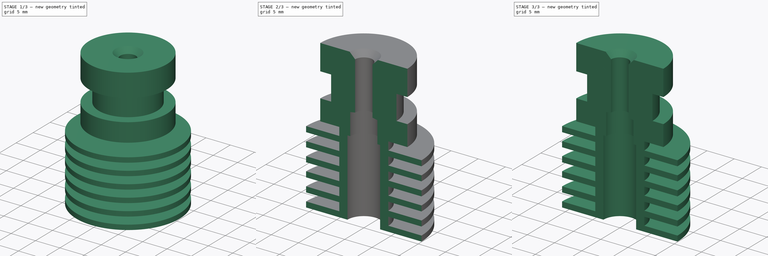
[diagram: build sequence overview — one tinted view per stage of 3, left to right]
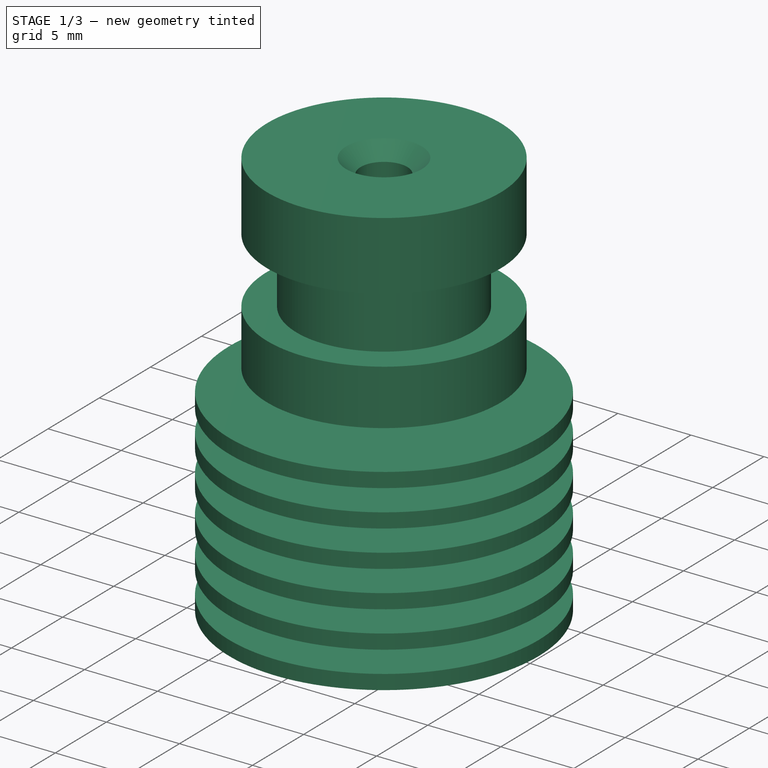
[diagram: stage 1 of 3 — iso view after this stage's code; geometry added in this stage tinted green]
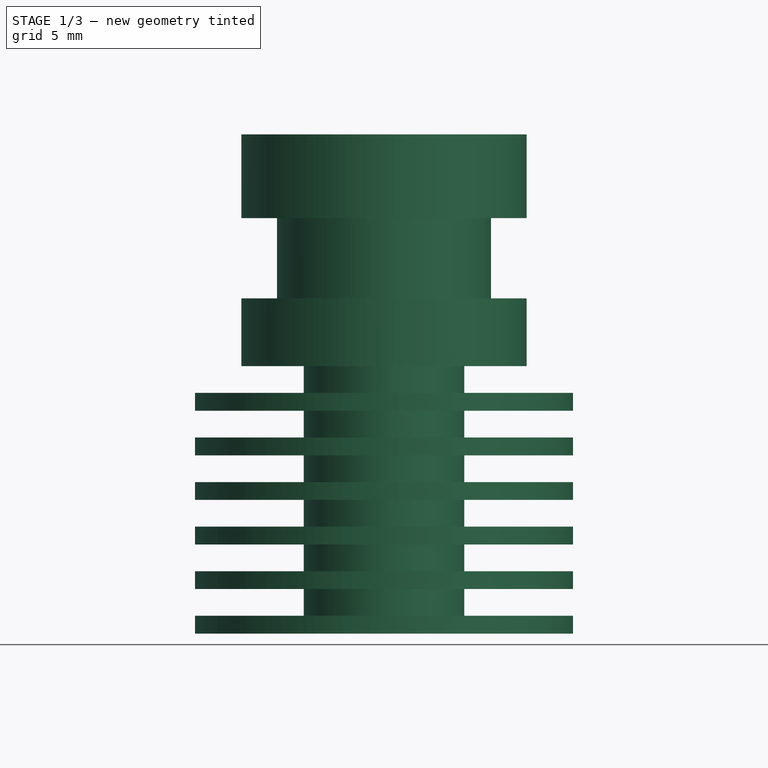
[diagram: stage 1 of 3 — front view after this stage's code; geometry added in this stage tinted green]
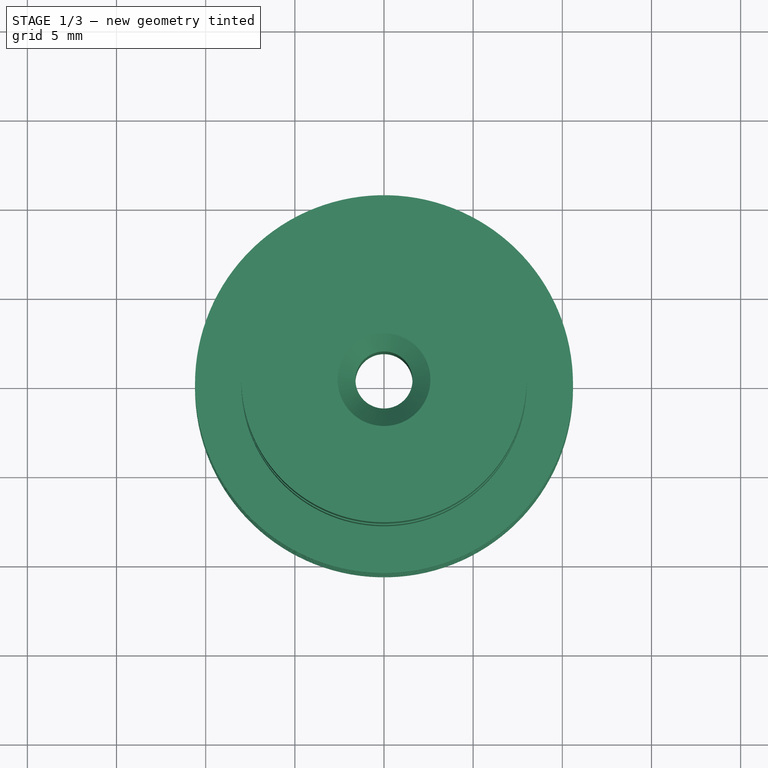
[diagram: stage 1 of 3 — top view after this stage's code; geometry added in this stage tinted green]
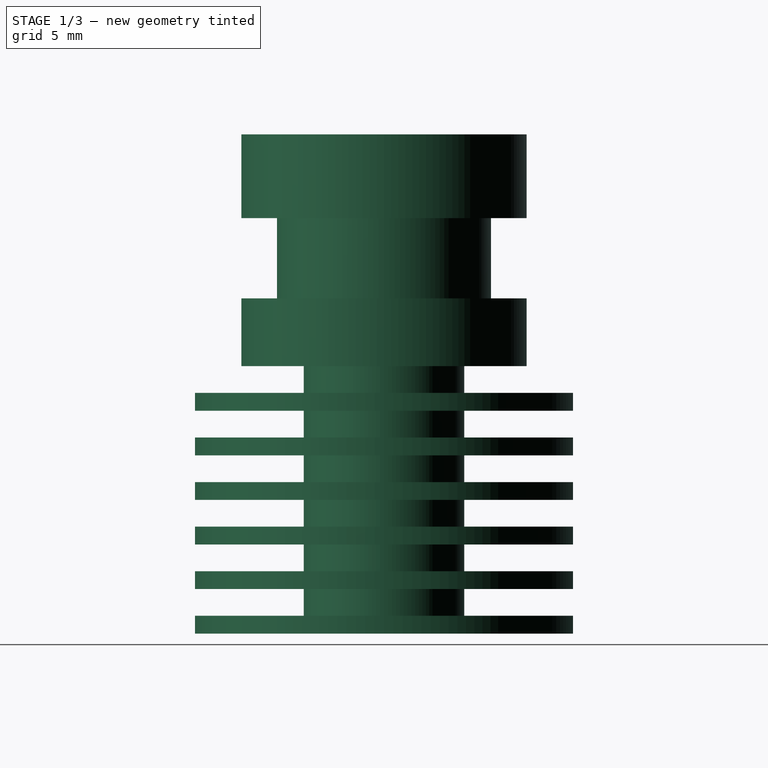
[diagram: stage 1 of 3 — right view after this stage's code; geometry added in this stage tinted green]
FCSTD DOCUMENT  (FreeCAD 0.17R13662 (Git))
Label: MOARstruder-heatsink_PP-MP0151_revA
License: All rights reserved
LicenseURL: http://en.wikipedia.org/wiki/All_rights_reserved
objects: Drawing::FeatureView×41, Drawing::FeatureViewPart×4, Sketcher::SketchObject×3, PartDesign::Pocket×2, PartDesign::Revolution×1, PartDesign::Chamfer×1, PartDesign::LinearPattern×1, PartDesign::Body×1, Drawing::FeaturePage×1
note: 12 computed .brp shape members not serialized (recipe doc carries the construction recipe); baked Part::Feature solids carry a one-line shape summary decoded from their .brp

FEATURE [Sketcher::SketchObject] Sketch
  MapMode = 5
  Placement = pos=(0,0,0) rot=(1,0,0;1.5708rad)
  Support = -> [XZ_Plane]
  sketch-geometry (36):
    g0: LineSegment StartX=10.6 StartY=0 StartZ=0 EndX=10.6 EndY=1 EndZ=0
    g1: LineSegment StartX=10.6 StartY=1 StartZ=0 EndX=4.5 EndY=1 EndZ=0
    g2: LineSegment StartX=4.5 StartY=1 StartZ=0 EndX=4.5 EndY=2.5 EndZ=0
    g3: LineSegment StartX=4.5 StartY=2.5 StartZ=0 EndX=10.6 EndY=2.5 EndZ=0
    g4: LineSegment StartX=10.6 StartY=2.5 StartZ=0 EndX=10.6 EndY=3.5 EndZ=0
    g5: LineSegment StartX=10.6 StartY=3.5 StartZ=0 EndX=4.5 EndY=3.5 EndZ=0
    g6: LineSegment StartX=4.5 StartY=3.5 StartZ=0 EndX=4.5 EndY=5 EndZ=0
    g7: LineSegment StartX=4.5 StartY=5 StartZ=0 EndX=10.6 EndY=5 EndZ=0
    g8: LineSegment StartX=10.6 StartY=5 StartZ=0 EndX=10.6 EndY=6 EndZ=0
    g9: LineSegment StartX=10.6 StartY=6 StartZ=0 EndX=4.5 EndY=6 EndZ=0
    g10: LineSegment StartX=4.5 StartY=6 StartZ=0 EndX=4.5 EndY=7.5 EndZ=0
    g11: LineSegment StartX=4.5 StartY=7.5 StartZ=0 EndX=10.6 EndY=7.5 EndZ=0
    g12: LineSegment StartX=10.6 StartY=7.5 StartZ=0 EndX=10.6 EndY=8.5 EndZ=0
    g13: LineSegment StartX=10.6 StartY=8.5 StartZ=0 EndX=4.5 EndY=8.5 EndZ=0
    g14: LineSegment StartX=4.5 StartY=8.5 StartZ=0 EndX=4.5 EndY=10 EndZ=0
    g15: LineSegment StartX=4.5 StartY=10 StartZ=0 EndX=10.6 EndY=10 EndZ=0
    g16: LineSegment StartX=10.6 StartY=10 StartZ=0 EndX=10.6 EndY=11 EndZ=0
    g17: LineSegment StartX=10.6 StartY=11 StartZ=0 EndX=4.5 EndY=11 EndZ=0
    g18: LineSegment StartX=4.5 StartY=11 StartZ=0 EndX=4.5 EndY=12.5 EndZ=0
    g19: LineSegment StartX=4.5 StartY=12.5 StartZ=0 EndX=10.6 EndY=12.5 EndZ=0
    g20: LineSegment StartX=10.6 StartY=12.5 StartZ=0 EndX=10.6 EndY=13.5 EndZ=0
    g21: LineSegment StartX=10.6 StartY=13.5 StartZ=0 EndX=4.5 EndY=13.5 EndZ=0
    g22: LineSegment StartX=4.5 StartY=13.5 StartZ=0 EndX=4.5 EndY=15 EndZ=0
    g23: LineSegment StartX=4.5 StartY=15 StartZ=0 EndX=8 EndY=15 EndZ=0
    g24: LineSegment StartX=8 StartY=15 StartZ=0 EndX=8 EndY=18.8 EndZ=0
    g25: LineSegment StartX=8 StartY=18.8 StartZ=0 EndX=6 EndY=18.8 EndZ=0
    g26: LineSegment StartX=6 StartY=18.8 StartZ=0 EndX=6 EndY=23.3 EndZ=0
    g27: LineSegment StartX=6 StartY=23.3 StartZ=0 EndX=8 EndY=23.3 EndZ=0
    g28: LineSegment StartX=8 StartY=23.3 StartZ=0 EndX=8 EndY=28 EndZ=0
    g29: LineSegment StartX=8 StartY=28 StartZ=0 EndX=1.6 EndY=28 EndZ=0
    g30: LineSegment StartX=1.6 StartY=28 StartZ=0 EndX=1.6 EndY=18.1587 EndZ=0
    g31: LineSegment StartX=1.6 StartY=18.1587 StartZ=0 EndX=2.5 EndY=18 EndZ=0
    g32: LineSegment StartX=2.5 StartY=18 StartZ=0 EndX=2.5 EndY=14 EndZ=0
    g33: LineSegment StartX=2.5 StartY=14 StartZ=0 EndX=3 EndY=14 EndZ=0
    g34: LineSegment StartX=3 StartY=14 StartZ=0 EndX=3 EndY=0 EndZ=0
    g35: LineSegment StartX=3 StartY=0 StartZ=0 EndX=10.6 EndY=0 EndZ=0
  constraints (108):
    c: PointOnObject(g0,g-1)
    c: Vertical(g0)
    c: Coincident(g0,g1)
    c: Horizontal(g1)
    c: Coincident(g1,g2)
    c: Vertical(g2)
    c: Coincident(g2,g3)
    c: Horizontal(g3)
    c: Coincident(g3,g4)
    c: Vertical(g4)
    c: Coincident(g4,g5)
    c: Horizontal(g5)
    c: Coincident(g5,g6)
    c: Vertical(g6)
    c: Coincident(g6,g7)
    c: Horizontal(g7)
    c: Coincident(g7,g8)
    c: Vertical(g8)
    c: Coincident(g8,g9)
    c: Coincident(g9,g10)
    c: Vertical(g10)
    c: Coincident(g10,g11)
    c: Coincident(g11,g12)
    c: Vertical(g12)
    c: Coincident(g12,g13)
    c: Coincident(g13,g14)
    c: Coincident(g14,g15)
    c: Coincident(g15,g16)
    c: Vertical(g16)
    c: Coincident(g16,g17)
    c: Horizontal(g17)
    c: Coincident(g17,g18)
    c: Vertical(g18)
    c: Coincident(g18,g19)
    c: Horizontal(g19)
    c: Coincident(g19,g20)
    c: Vertical(g20)
    c: Coincident(g20,g21)
    c: Horizontal(g21)
    c: Horizontal(g9)
    c: Horizontal(g11)
    c: Horizontal(g13)
    c: Horizontal(g15)
    c: Vertical(g14)
    c: DistanceX(g0) = 10.6
    c: PointOnObject(g3,g0)
    c: PointOnObject(g7,g4)
    c: PointOnObject(g11,g8)
    c: PointOnObject(g15,g12)
    c: PointOnObject(g16,g20)
    c: Equal(g1,g5)
    c: Equal(g5,g9)
    c: Equal(g9,g13)
    c: Equal(g13,g17)
    c: DistanceX(g-1,g1) = 4.5
    c: Equal(g0,g4)
    c: Equal(g4,g8)
    c: Equal(g8,g12)
    c: Equal(g12,g16)
    c: Equal(g16,g20)
    c: DistanceY(g0,g0) = 1
    c: Equal(g2,g6)
    c: Equal(g6,g10)
    c: Equal(g10,g14)
    c: Equal(g14,g18)
    c: DistanceY(g2,g2) = 1.5
    c: PointOnObject(g21,g18)
    c: Coincident(g21,g22)
    c: Vertical(g22)
    c: Coincident(g22,g23)
    c: Horizontal(g23)
    c: Coincident(g23,g24)
    c: Vertical(g24)
    c: Coincident(g24,g25)
    c: Horizontal(g25)
    c: Coincident(g25,g26)
    c: Vertical(g26)
    c: Coincident(g26,g27)
    c: Horizontal(g27)
    c: Coincident(g27,g28)
    c: Vertical(g28)
    c: Coincident(g28,g29)
    c: Horizontal(g29)
    c: Coincident(g29,g30)
    c: Vertical(g30)
    c: Coincident(g30,g31)
    c: Coincident(g31,g32)
    c: Vertical(g32)
    c: Coincident(g32,g33)
    c: Horizontal(g33)
    c: Coincident(g33,g34)
    c: PointOnObject(g34,g-1)
    c: Vertical(g34)
    c: Coincident(g34,g35)
    c: Coincident(g35,g0)
    c: DistanceX(g34) = 3
    c: DistanceX(g32) = 2.5
    c: DistanceX(g30) = 1.6
    c: DistanceX(g25) = 6
    c: PointOnObject(g27,g24)
    c: DistanceX(g23) = 8
    c: DistanceY(g24,g24) = 3.8
    c: DistanceY(g26,g26) = 4.5
    c: DistanceY(g28,g28) = 4.7
    c: DistanceY(g31) = 18
    c: Angle(g31,g32) = 1.74533
    c: DistanceY(g33) = 14
    c: DistanceY(g22,g22) = 1.5
FEATURE [PartDesign::Revolution] Revolution
  Angle = 360
  Axis = (0,0,1)
  Base = (0,0,0)
  Placement = pos=(0,0,0) rot=(1,0,0;1.5708rad)
  Profile = -> Sketch
  ReferenceAxis = -> Sketch [V_Axis]
  Reversed = true
FEATURE [PartDesign::Chamfer] Chamfer
  Base = -> Revolution [Edge46]
  BaseFeature = -> Revolution
  Placement = pos=(0,0,0) rot=(1,0,0;1.5708rad)
  Size = 1
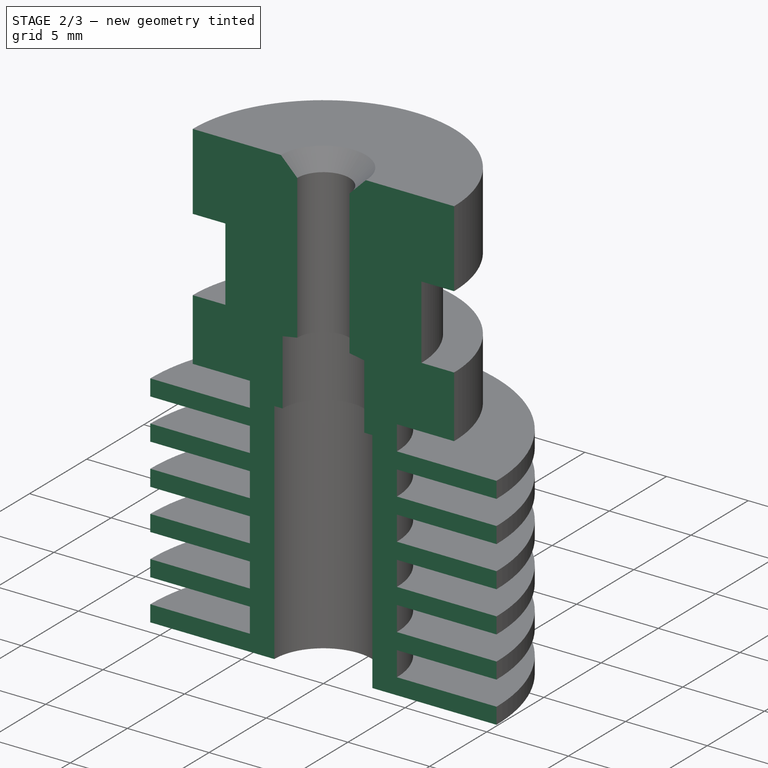
[diagram: stage 2 of 3 — iso view after this stage's code; geometry added in this stage tinted green]
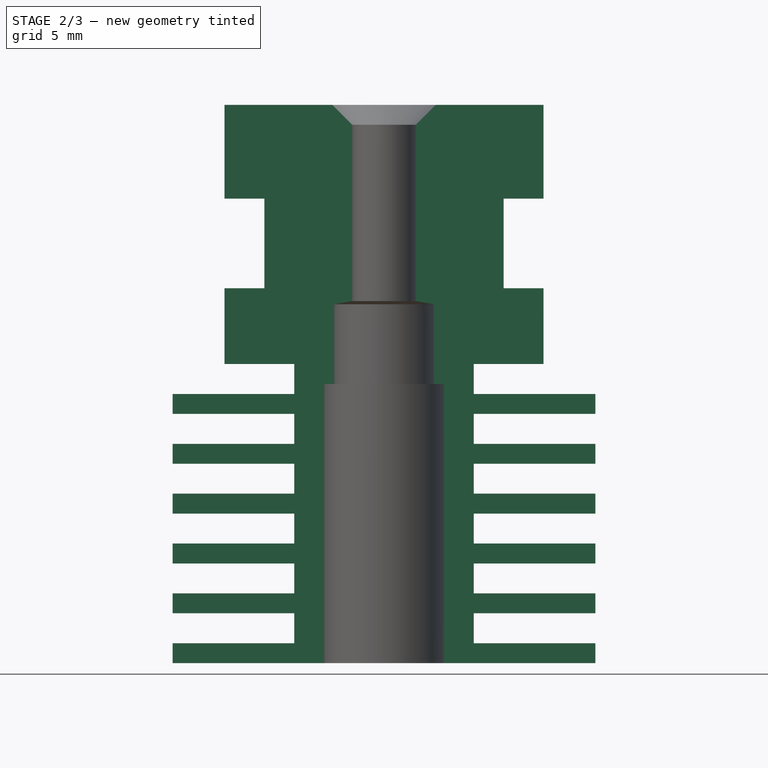
[diagram: stage 2 of 3 — front view after this stage's code; geometry added in this stage tinted green]
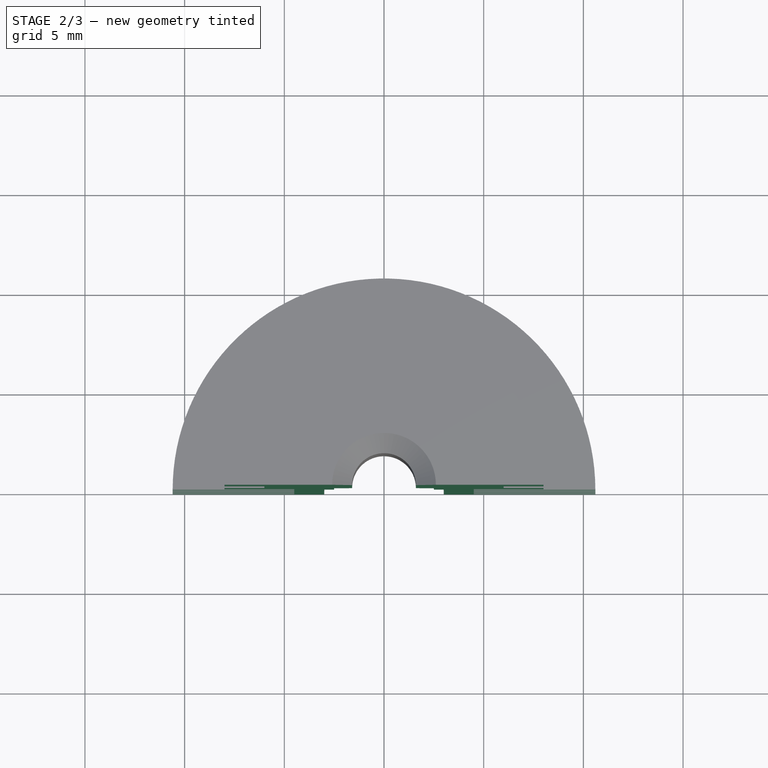
[diagram: stage 2 of 3 — top view after this stage's code; geometry added in this stage tinted green]
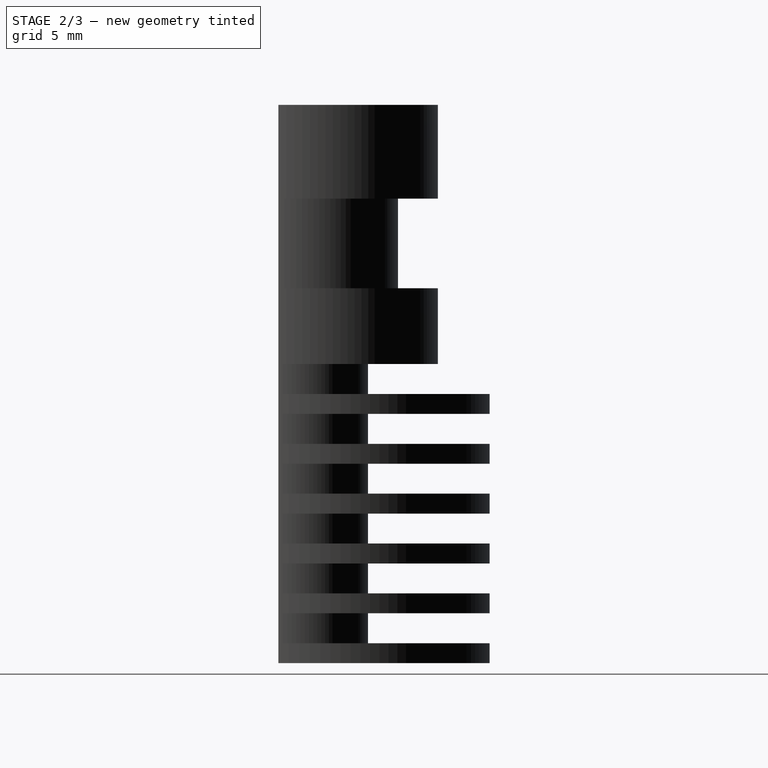
[diagram: stage 2 of 3 — right view after this stage's code; geometry added in this stage tinted green]
FEATURE [Sketcher::SketchObject] Sketch001
  MapMode = 5
  Placement = pos=(0,0,28) rot=(0,0,1;3.14159rad)
  Support = -> [Chamfer]
  sketch-geometry (4):
    g0: LineSegment StartX=-15 StartY=0 StartZ=0 EndX=15 EndY=0 EndZ=0
    g1: LineSegment StartX=15 StartY=0 StartZ=0 EndX=15 EndY=15 EndZ=0
    g2: LineSegment StartX=15 StartY=15 StartZ=0 EndX=-15 EndY=15 EndZ=0
    g3: LineSegment StartX=-15 StartY=15 StartZ=0 EndX=-15 EndY=0 EndZ=0
  constraints (12):
    c: Coincident(g0,g1)
    c: Coincident(g1,g2)
    c: Coincident(g2,g3)
    c: Coincident(g3,g0)
    c: Horizontal(g0)
    c: Horizontal(g2)
    c: Vertical(g1)
    c: Vertical(g3)
    c: PointOnObject(g0,g-1)
    c: Symmetric(g2,g1,g-2)
    c: DistanceY(g1,g1) = 15
    c: DistanceX(g2,g2) = 30
FEATURE [PartDesign::Pocket] Pocket
  BaseFeature = -> Chamfer
  Length = 5
  Length2 = 100
  Placement = pos=(0,0,0) rot=(1,0,0;1.5708rad)
  Profile = -> Sketch001
  Type = 1
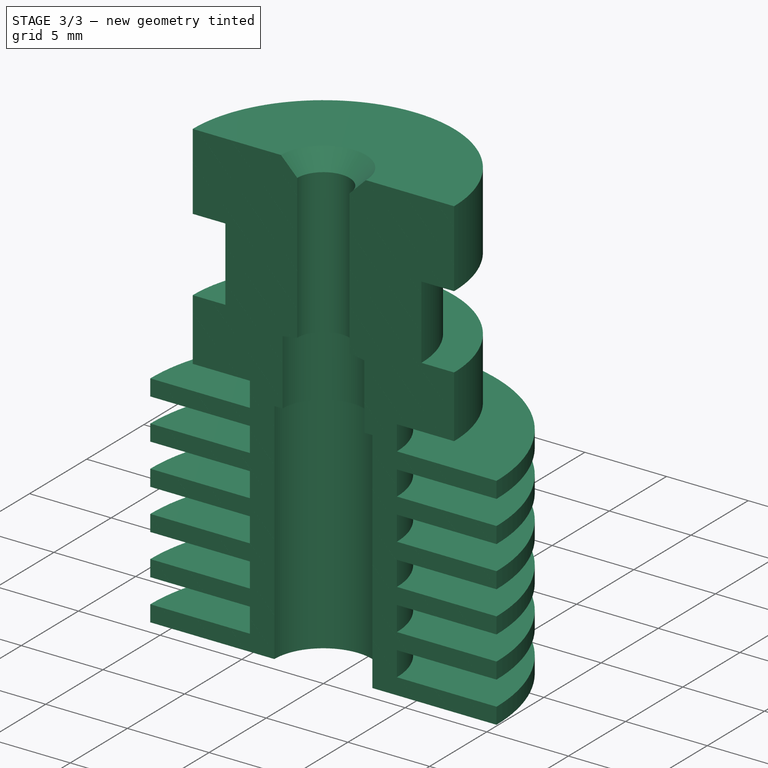
[diagram: stage 3 of 3 — iso view after this stage's code; geometry added in this stage tinted green]
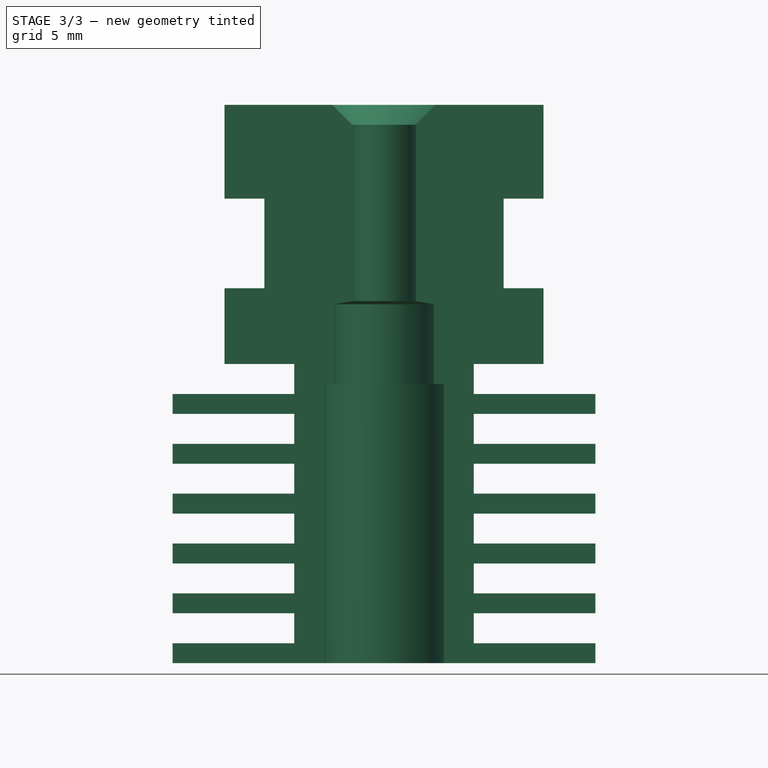
[diagram: stage 3 of 3 — front view after this stage's code; geometry added in this stage tinted green]
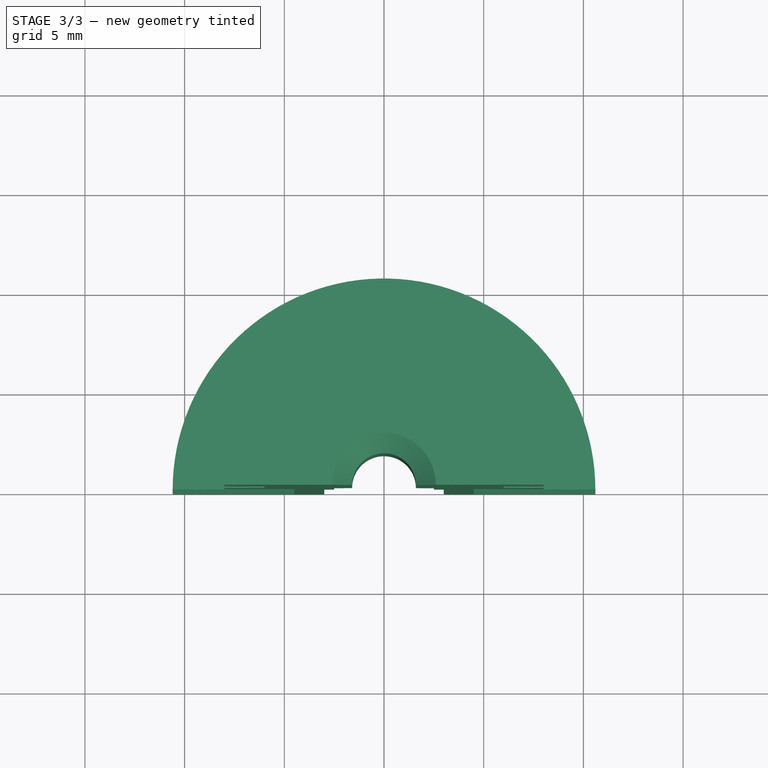
[diagram: stage 3 of 3 — top view after this stage's code; geometry added in this stage tinted green]
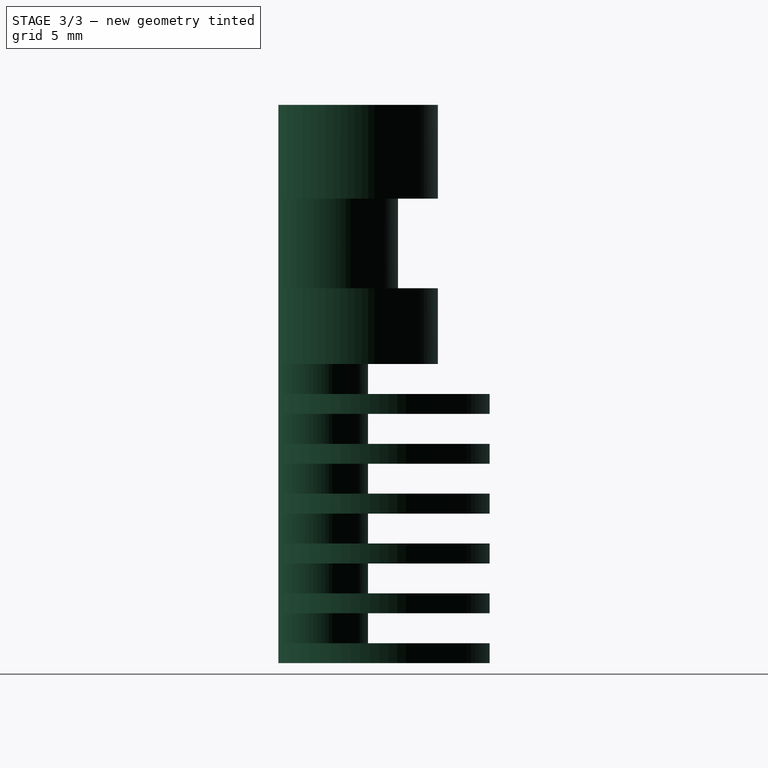
[diagram: stage 3 of 3 — right view after this stage's code; geometry added in this stage tinted green]
FEATURE [Sketcher::SketchObject] Sketch002
  MapMode = 5
  Placement = pos=(0,0,0) rot=(1,0,0;1.5708rad)
  Support = -> [Pocket]
  sketch-geometry (4):
    g0: LineSegment StartX=-15 StartY=4 StartZ=0 EndX=15 EndY=-26 EndZ=0
    g1: LineSegment StartX=15 StartY=-26 StartZ=0 EndX=15 EndY=-25 EndZ=0
    g2: LineSegment StartX=15 StartY=-25 StartZ=0 EndX=-15 EndY=5 EndZ=0
    g3: LineSegment StartX=-15 StartY=5 StartZ=0 EndX=-15 EndY=4 EndZ=0
  constraints (12):
    c: Coincident(g0,g1)
    c: Vertical(g1)
    c: Coincident(g1,g2)
    c: Coincident(g2,g3)
    c: Coincident(g3,g0)
    c: Vertical(g3)
    c: Parallel(g2,g0)
    c: DistanceY(g1,g1) = 1
    c: DistanceX(g2,g-1) = 15
    c: DistanceX(g0) = 15
    c: Angle(g2,g-1) = 0.785398
    c: DistanceY(g-1,g2) = 5
FEATURE [PartDesign::Pocket] Pocket001
  BaseFeature = -> Pocket
  Length = 0.001
  Length2 = 100
  Placement = pos=(0,0,0) rot=(1,0,0;1.5708rad)
  Profile = -> Sketch002
  Type = 0
FEATURE [PartDesign::LinearPattern] LinearPattern
  BaseFeature = -> Pocket001
  Direction = -> Z_Axis
  Length = 50
  Occurrences = 25
  Originals = -> [Pocket001]
  Placement = pos=(0,0,0) rot=(1,0,0;1.5708rad)
FEATURE [PartDesign::Body] Body
  Group = -> [Sketch,Revolution,Chamfer,Sketch001,Pocket,Sketch002,Pocket001,LinearPattern]
  Origin = -> BodyOrigin
  Tip = -> LinearPattern
FEATURE [Drawing::FeatureViewPart] Ortho  label="Ortho_0_0"
  Direction = (1,0,0)
  HiddenWidth = 0.15
  LineWidth = 0.35
  Rotation = -90
  Scale = 2
  ShowHiddenLines = true
  ShowSmoothLines = true
  Source = -> Chamfer
  Tolerance = 0.05
  ViewResult = <blob: 27937 chars omitted>
  Visible = false
  X = 80
  Y = 98
FEATURE [Drawing::FeatureViewPart] Ortho001  label="Ortho_0_-1"
  Direction = (0,0,-1)
  HiddenWidth = 0.15
  LineWidth = 0.35
  Rotation = 90
  Scale = 2
  ShowHiddenLines = true
  ShowSmoothLines = true
  Source = -> Chamfer
  Tolerance = 0.05
  ViewResult = <blob: 2063 chars omitted>
  Visible = false
  X = 80
  Y = 150
FEATURE [Drawing::FeatureViewPart] View
  Direction = (0,-1,0)
  HiddenWidth = 0.15
  LineWidth = 0.35
  Rotation = 90
  Scale = 2
  ShowHiddenLines = false
  ShowSmoothLines = false
  Source = -> LinearPattern
  Tolerance = 0.05
  ViewResult = <blob: 55794 chars omitted>
  Visible = false
  X = 160
  Y = 98
FEATURE [Drawing::FeatureView] centerLines001
  Rotation = 0
  ViewResult = <g transform="scale(2.000000,2.000000)" stroke="rgb(0,0,255)"  stroke-width="0.150000" > <path d="M 40.000000,27.950000 L 40.000000,26.950000 M 40.000000,25.950000 L 40.000000,22.950000 M 40.000000,21.950000 L 40.000000,20.950000 M 40.000000,19.950000 L 40.000000,16.950000 M 40.000000,15.950000 L 40.000000,14.950000 "/>\n<path d="M 40.000000,27.950000 L 40.000000,28.950000 M 40.000000,29.950000 L 40.000000,32.950000 M 40.000000,33.950000 L 40.000000,34.950000 M 40.000000,35.950000 L 40.000000,38.950000 M 40.000000,39.950000 L 40.000000,40.950000 M 40.000000,41.950000 L 40.000000,44.950000 M 40.000000,45.950000 L 40.000000,46.950000 M 40.000000,47.950000 L 40.000000,50.950000 M 40.000000,51.950000 L 40.000000,52.950000 M 40.000000,53.950000 L 40.000000,55.606559 "/> </g> 
  Visible = false
  X = 0
  Y = 0
FEATURE [Drawing::FeatureView] dim001
  Rotation = 0
  ViewResult = <g> <line x1="155.000000" y1="69.166600" x2="155.000000" y2="108.462995" style="stroke:rgb(0,0,255);stroke-width:0.20" />\n<line x1="165.000000" y1="68.666600" x2="165.000000" y2="108.462995" style="stroke:rgb(0,0,255);stroke-width:0.20" />\n<line x1="155.000000" y1="107.462995" x2="165.000000" y2="107.462995" style="stroke:rgb(0,0,255);stroke-width:0.20" />\n<polygon points="155.000000,107.462995 158.000000,108.212995 158.000000,107.462995 158.000000,106.712995" style="fill:rgb(0,0,255);stroke:rgb(0,0,255);stroke-width:0" />\n<polygon points="165.000000,107.462995 162.000000,106.712995 162.000000,107.462995 162.000000,108.212995" style="fill:rgb(0,0,255);stroke:rgb(0,0,255);stroke-width:0" />\n<text x="160.000000" y="106.462995" font-family="Verdana" font-size="3" fill="rgb(0,0,0)" text-anchor="middle"  >5.00</text> </g> 
  Visible = false
  X = 0
  Y = 0
FEATURE [Drawing::FeatureView] dim002
  Rotation = 0
  ViewResult = <g> <line x1="138.800000" y1="100.000000" x2="138.800000" y2="120.186231" style="stroke:rgb(0,0,255);stroke-width:0.20" />\n<line x1="181.200000" y1="99.533334" x2="181.200000" y2="120.186231" style="stroke:rgb(0,0,255);stroke-width:0.20" />\n<line x1="138.800000" y1="119.186231" x2="181.200000" y2="119.186231" style="stroke:rgb(0,0,255);stroke-width:0.20" />\n<polygon points="138.800000,119.186231 141.800000,119.936231 141.800000,119.186231 141.800000,118.436231" style="fill:rgb(0,0,255);stroke:rgb(0,0,255);stroke-width:0" />\n<polygon points="181.200000,119.186231 178.200000,118.436231 178.200000,119.186231 178.200000,119.936231" style="fill:rgb(0,0,255);stroke:rgb(0,0,255);stroke-width:0" />\n<text x="160.000000" y="118.186231" font-family="Verdana" font-size="3" fill="rgb(0,0,0)" text-anchor="middle"  >6X 21.2</text> </g> 
  Visible = false
  X = 0
  Y = 0
FEATURE [Drawing::FeatureView] dim003
  Rotation = 0
  ViewResult = <g> \n  <line x1="58.899460" y1="96.000000" x2="49.646535" y2="96.000000" style="stroke:rgb(0,0,255);stroke-width:0.20" />\n<line x1="58.899460" y1="98.000000" x2="49.646535" y2="98.000000" style="stroke:rgb(0,0,255);stroke-width:0.20" />\n<line x1="50.646535" y1="96.000000" x2="50.646535" y2="98.000000" style="stroke:rgb(0,0,255);stroke-width:0.20" /> \n  <polygon points="50.646535,98.000000 49.896535,101.000000 50.646535,101.000000 51.396535,101.000000" style="fill:rgb(0,0,255);stroke:rgb(0,0,255);stroke-width:0" /><polygon points="50.646535,96.000000 51.396535,93.000000 50.646535,93.000000 49.896535,93.000000" style="fill:rgb(0,0,255);stroke:rgb(0,0,255);stroke-width:0" /> \n  <text x="51.777625" y="86.947333" font-family="Verdana" font-size="3" fill="rgb(0,0,0)" text-anchor="middle" transform="rotate(-90.000000 51.777625,86.947333)" >6X 1.0</text> </g>
  Visible = false
  X = 0
  Y = 0
FEATURE [Drawing::FeatureView] dim004
  Rotation = 0
  ViewResult = <g> \n  <line x1="103.066600" y1="91.000000" x2="109.638559" y2="91.000000" style="stroke:rgb(0,0,255);stroke-width:0.20" />\n<line x1="103.066600" y1="88.000000" x2="109.638559" y2="88.000000" style="stroke:rgb(0,0,255);stroke-width:0.20" />\n<line x1="108.638559" y1="91.000000" x2="108.638559" y2="88.000000" style="stroke:rgb(0,0,255);stroke-width:0.20" /> \n  <polygon points="108.638559,88.000000 109.388559,85.000000 108.638559,85.000000 107.888559,85.000000" style="fill:rgb(0,0,255);stroke:rgb(0,0,255);stroke-width:0" /><polygon points="108.638559,91.000000 107.888559,94.000000 108.638559,94.000000 109.388559,94.000000" style="fill:rgb(0,0,255);stroke:rgb(0,0,255);stroke-width:0" /> \n  <text x="109.579691" y="79.783133" font-family="Verdana" font-size="3" fill="rgb(0,0,0)" text-anchor="middle" transform="rotate(-90.000000 109.579691,79.783133)" >6X 1.5</text> </g>
  Visible = false
  X = 0
  Y = 0
FEATURE [Drawing::FeatureView] dim005
  Rotation = 0
  ViewResult = <g> \n  <line x1="95.547580" y1="68.000000" x2="116.433845" y2="68.000000" style="stroke:rgb(0,0,255);stroke-width:0.20" />\n<line x1="98.574820" y1="98.000000" x2="116.433845" y2="98.000000" style="stroke:rgb(0,0,255);stroke-width:0.20" />\n<line x1="115.433845" y1="68.000000" x2="115.433845" y2="98.000000" style="stroke:rgb(0,0,255);stroke-width:0.20" /> \n  <polygon points="115.433845,98.000000 116.183845,95.000000 115.433845,95.000000 114.683845,95.000000" style="fill:rgb(0,0,255);stroke:rgb(0,0,255);stroke-width:0" /><polygon points="115.433845,68.000000 114.683845,71.000000 115.433845,71.000000 116.183845,71.000000" style="fill:rgb(0,0,255);stroke:rgb(0,0,255);stroke-width:0" /> \n  <text x="114.433845" y="83.000000" font-family="Verdana" font-size="3" fill="rgb(0,0,0)" text-anchor="middle" transform="rotate(-90.000000 114.433845,83.000000)" >15.0</text> </g>
  Visible = false
  X = 0
  Y = 0
FEATURE [Drawing::FeatureView] dim006
  Rotation = 0
  ViewResult = <g> \n  <line x1="98.000000" y1="68.000000" x2="112.370029" y2="68.000000" style="stroke:rgb(0,0,255);stroke-width:0.20" />\n<line x1="98.000000" y1="60.400000" x2="112.370029" y2="60.400000" style="stroke:rgb(0,0,255);stroke-width:0.20" />\n<line x1="111.370029" y1="68.000000" x2="111.370029" y2="60.400000" style="stroke:rgb(0,0,255);stroke-width:0.20" /> \n  <polygon points="111.370029,60.400000 110.620029,63.400000 111.370029,63.400000 112.120029,63.400000" style="fill:rgb(0,0,255);stroke:rgb(0,0,255);stroke-width:0" /><polygon points="111.370029,68.000000 112.120029,65.000000 111.370029,65.000000 110.620029,65.000000" style="fill:rgb(0,0,255);stroke:rgb(0,0,255);stroke-width:0" /> \n  <text x="110.370029" y="64.200000" font-family="Verdana" font-size="3" fill="rgb(0,0,0)" text-anchor="middle" transform="rotate(-90.000000 110.370029,64.200000)" >3.8</text> </g>
  Visible = false
  X = 0
  Y = 0
FEATURE [Drawing::FeatureView] dim007
  Rotation = 0
  ViewResult = <g> \n  <line x1="94.000000" y1="60.400000" x2="112.304594" y2="60.400000" style="stroke:rgb(0,0,255);stroke-width:0.20" />\n<line x1="94.000000" y1="51.400000" x2="112.304594" y2="51.400000" style="stroke:rgb(0,0,255);stroke-width:0.20" />\n<line x1="111.304594" y1="60.400000" x2="111.304594" y2="51.400000" style="stroke:rgb(0,0,255);stroke-width:0.20" /> \n  <polygon points="111.304594,51.400000 110.554594,54.400000 111.304594,54.400000 112.054594,54.400000" style="fill:rgb(0,0,255);stroke:rgb(0,0,255);stroke-width:0" /><polygon points="111.304594,60.400000 112.054594,57.400000 111.304594,57.400000 110.554594,57.400000" style="fill:rgb(0,0,255);stroke:rgb(0,0,255);stroke-width:0" /> \n  <text x="117.316645" y="59.315392" font-family="Verdana" font-size="3" fill="rgb(0,0,0)" text-anchor="middle" transform="rotate(-90.000000 117.316645,59.315392)" >4.5</text> </g>
  Visible = false
  X = 0
  Y = 0
FEATURE [Drawing::FeatureView] dim008
  Rotation = 0
  ViewResult = <g> \n  <line x1="98.000000" y1="51.400000" x2="111.981642" y2="51.400000" style="stroke:rgb(0,0,255);stroke-width:0.20" />\n<line x1="98.000000" y1="42.000000" x2="111.981642" y2="42.000000" style="stroke:rgb(0,0,255);stroke-width:0.20" />\n<line x1="110.981642" y1="51.400000" x2="110.981642" y2="42.000000" style="stroke:rgb(0,0,255);stroke-width:0.20" /> \n  <polygon points="110.981642,42.000000 110.231642,45.000000 110.981642,45.000000 111.731642,45.000000" style="fill:rgb(0,0,255);stroke:rgb(0,0,255);stroke-width:0" /><polygon points="110.981642,51.400000 111.731642,48.400000 110.981642,48.400000 110.231642,48.400000" style="fill:rgb(0,0,255);stroke:rgb(0,0,255);stroke-width:0" /> \n  <text x="109.981642" y="46.700000" font-family="Verdana" font-size="3" fill="rgb(0,0,0)" text-anchor="middle" transform="rotate(-90.000000 109.981642,46.700000)" >4.70</text> </g>
  Visible = false
  X = 0
  Y = 0
FEATURE [Drawing::FeatureView] dim009
  Rotation = 0
  ViewResult = <g> \n  <line x1="148.000000" y1="55.833400" x2="148.000000" y2="57.110138" style="stroke:rgb(0,0,255);stroke-width:0.20" />\n<line x1="172.000000" y1="57.000000" x2="172.000000" y2="57.110138" style="stroke:rgb(0,0,255);stroke-width:0.20" />\n<line x1="148.000000" y1="56.110138" x2="172.000000" y2="56.110138" style="stroke:rgb(0,0,255);stroke-width:0.20" /> \n  <polygon points="172.000000,56.110138 169.000000,55.360138 169.000000,56.110138 169.000000,56.860138" style="fill:rgb(0,0,255);stroke:rgb(0,0,255);stroke-width:0" /><polygon points="148.000000,56.110138 151.000000,56.860138 151.000000,56.110138 151.000000,55.360138" style="fill:rgb(0,0,255);stroke:rgb(0,0,255);stroke-width:0" /> \n  <text x="176.499829" y="56.662307" font-family="Verdana" font-size="3" fill="rgb(0,0,0)" text-anchor="middle"  >12.0</text> </g>
  Visible = false
  X = 0
  Y = 0
FEATURE [Drawing::FeatureView] dim010
  Rotation = 0
  ViewResult = <g> \n  <line x1="156.800000" y1="48.133400" x2="156.800000" y2="33.805627" style="stroke:rgb(0,0,255);stroke-width:0.20" />\n<line x1="163.200000" y1="48.366600" x2="163.200000" y2="33.805627" style="stroke:rgb(0,0,255);stroke-width:0.20" />\n<line x1="156.800000" y1="34.805627" x2="163.200000" y2="34.805627" style="stroke:rgb(0,0,255);stroke-width:0.20" /> \n  <polygon points="163.200000,34.805627 166.200000,35.555627 166.200000,34.805627 166.200000,34.055627" style="fill:rgb(0,0,255);stroke:rgb(0,0,255);stroke-width:0" /><polygon points="156.800000,34.805627 153.800000,34.055627 153.800000,34.805627 153.800000,35.555627" style="fill:rgb(0,0,255);stroke:rgb(0,0,255);stroke-width:0" /> \n  <text x="160.000000" y="33.805627" font-family="Verdana" font-size="3" fill="rgb(0,0,0)" text-anchor="middle"  >3.200</text> </g>
  Visible = false
  X = 0
  Y = 0
FEATURE [Drawing::FeatureView] dim011
  Rotation = 0
  ViewResult = <g> \n  <line x1="154.800000" y1="40.000000" x2="154.800000" y2="27.493976" style="stroke:rgb(0,0,255);stroke-width:0.20" />\n<line x1="165.333340" y1="40.000000" x2="165.333340" y2="27.493976" style="stroke:rgb(0,0,255);stroke-width:0.20" />\n<line x1="154.800000" y1="28.493976" x2="165.333340" y2="28.493976" style="stroke:rgb(0,0,255);stroke-width:0.20" /> \n  <polygon points="165.333340,28.493976 162.333340,27.743976 162.333340,28.493976 162.333340,29.243976" style="fill:rgb(0,0,255);stroke:rgb(0,0,255);stroke-width:0" /><polygon points="154.800000,28.493976 157.800000,29.243976 157.800000,28.493976 157.800000,27.743976" style="fill:rgb(0,0,255);stroke:rgb(0,0,255);stroke-width:0" /> \n  <text x="160.066670" y="27.493976" font-family="Verdana" font-size="3" fill="rgb(0,0,0)" text-anchor="middle"  >5.2</text> </g>
  Visible = false
  X = 0
  Y = 0
FEATURE [Drawing::FeatureView] dim012
  Rotation = 0
  ViewResult = <g> \n  <line x1="144.000000" y1="41.666600" x2="144.000000" y2="21.116753" style="stroke:rgb(0,0,255);stroke-width:0.20" />\n<line x1="176.000000" y1="42.333400" x2="176.000000" y2="21.116753" style="stroke:rgb(0,0,255);stroke-width:0.20" />\n<line x1="144.000000" y1="22.116753" x2="176.000000" y2="22.116753" style="stroke:rgb(0,0,255);stroke-width:0.20" /> \n  <polygon points="176.000000,22.116753 173.000000,21.366753 173.000000,22.116753 173.000000,22.866753" style="fill:rgb(0,0,255);stroke:rgb(0,0,255);stroke-width:0" /><polygon points="144.000000,22.116753 147.000000,22.866753 147.000000,22.116753 147.000000,21.366753" style="fill:rgb(0,0,255);stroke:rgb(0,0,255);stroke-width:0" /> \n  <text x="160.000000" y="21.116753" font-family="Verdana" font-size="3" fill="rgb(0,0,0)" text-anchor="middle"  >2X 16.0</text> </g>
  Visible = false
  X = 0
  Y = 0
FEATURE [Drawing::FeatureView] dim013
  Rotation = 0
  ViewResult = <g> \n  <line x1="159.111490" y1="70.000000" x2="130.841175" y2="70.000000" style="stroke:rgb(0,0,255);stroke-width:0.20" />\n<line x1="146.333340" y1="98.000000" x2="130.841175" y2="98.000000" style="stroke:rgb(0,0,255);stroke-width:0.20" />\n<line x1="131.841175" y1="70.000000" x2="131.841175" y2="98.000000" style="stroke:rgb(0,0,255);stroke-width:0.20" /> \n  <polygon points="131.841175,98.000000 132.591175,95.000000 131.841175,95.000000 131.091175,95.000000" style="fill:rgb(0,0,255);stroke:rgb(0,0,255);stroke-width:0" /><polygon points="131.841175,70.000000 131.091175,73.000000 131.841175,73.000000 132.591175,73.000000" style="fill:rgb(0,0,255);stroke:rgb(0,0,255);stroke-width:0" /> \n  <text x="130.841175" y="84.000000" font-family="Verdana" font-size="3" fill="rgb(0,0,0)" text-anchor="middle" transform="rotate(-90.000000 130.841175,84.000000)" >14.0 MIN</text> </g>
  Visible = false
  X = 0
  Y = 0
FEATURE [Drawing::FeatureView] dim014
  Rotation = 0
  ViewResult = <g> \n  <line x1="160.886560" y1="62.000000" x2="193.786624" y2="62.000000" style="stroke:rgb(0,0,255);stroke-width:0.20" />\n<line x1="163.335126" y1="98.000000" x2="193.786624" y2="98.000000" style="stroke:rgb(0,0,255);stroke-width:0.20" />\n<line x1="192.786624" y1="62.000000" x2="192.786624" y2="98.000000" style="stroke:rgb(0,0,255);stroke-width:0.20" /> \n  <polygon points="192.786624,98.000000 193.536624,95.000000 192.786624,95.000000 192.036624,95.000000" style="fill:rgb(0,0,255);stroke:rgb(0,0,255);stroke-width:0" /><polygon points="192.786624,62.000000 192.036624,65.000000 192.786624,65.000000 193.536624,65.000000" style="fill:rgb(0,0,255);stroke:rgb(0,0,255);stroke-width:0" /> \n  <text x="191.786624" y="80.000000" font-family="Verdana" font-size="3" fill="rgb(0,0,0)" text-anchor="middle" transform="rotate(-90.000000 191.786624,80.000000)" >18.0</text> </g>
  Visible = false
  X = 0
  Y = 0
FEATURE [Drawing::FeatureView] dimText001
  Rotation = 0
  ViewResult = <g > <text x="116.779044" y="51.131898" font-family="Verdana" font-size="2.4" fill="rgb(0,0,0)" text-anchor="end" transform="rotate(-90.000000 116.779044,51.131898)" >-0.0</text> \n <text x="114.568903" y="51.072165" font-family="Verdana" font-size="2.4" fill="rgb(0,0,0)" text-anchor="end" transform="rotate(-90.000000 114.568903,51.072165)" >+0.1</text> </g> 
  Visible = false
  X = 0
  Y = 0
FEATURE [Drawing::FeatureView] dimText002
  Rotation = 0
  ViewResult = <g > <text x="187.408951" y="56.662307" font-family="Verdana" font-size="2.4" fill="rgb(0,0,0)" text-anchor="end" transform="rotate(0.000000 187.408951,56.662307)" >-0.10</text> \n <text x="187.408951" y="54.262307" font-family="Verdana" font-size="2.4" fill="rgb(0,0,0)" text-anchor="end" transform="rotate(0.000000 187.408951,54.262307)" >+0.00</text> </g> 
  Visible = false
  X = 0
  Y = 0
FEATURE [Drawing::FeatureView] grabPoint001
  Rotation = 0
  ViewResult = <g> <line x1="80.0" y1="110.0" x2="80.0" y2="110.0" style="stroke:rgb(0,0,0);stroke-width:0.01" /> </g> 
  Visible = false
  X = 0
  Y = 0
FEATURE [Drawing::FeatureView] grabPoint002
  Rotation = 0
  ViewResult = <g> <line x1="80.0" y1="30.0" x2="80.0" y2="30.0" style="stroke:rgb(0,0,0);stroke-width:0.01" /> </g> 
  Visible = false
  X = 0
  Y = 0
FEATURE [Drawing::FeatureView] dimLine001
  Rotation = 0
  ViewResult = <g   >\n<line x1="95.000000" y1="30.000000" x2="80.000000" y2="30.000000" style="stroke:rgb(0,0,0);stroke-width:0.50" />\n<polygon points="80.000000,30.000000 83.000000,31.250000 83.000000,30.000000 83.000000,28.750000" style="fill:rgb(0,0,0);stroke:rgb(0,0,0);stroke-width:0" />\n<line x1="95.000000" y1="30.000000" x2="95.000000" y2="30.000000" style="stroke:rgb(0,0,0);stroke-width:0.50" />\n</g> 
  Visible = false
  X = 0
  Y = 0
FEATURE [Drawing::FeatureView] dimLine002
  Rotation = 0
  ViewResult = <g   >\n<line x1="95.000000" y1="110.000000" x2="80.000000" y2="110.000000" style="stroke:rgb(0,0,0);stroke-width:0.50" />\n<polygon points="80.000000,110.000000 83.000000,111.250000 83.000000,110.000000 83.000000,108.750000" style="fill:rgb(0,0,0);stroke:rgb(0,0,0);stroke-width:0" />\n<line x1="95.000000" y1="110.000000" x2="95.000000" y2="110.000000" style="stroke:rgb(0,0,0);stroke-width:0.50" />\n</g> 
  Visible = false
  X = 0
  Y = 0
FEATURE [Drawing::FeatureView] dimText003
  Rotation = 0
  ViewResult = <g> <text x="96.833928" y="110.667347" font-family="inherit" font-size="4" fill="rgb(0,0,0)" text-anchor="inherit" transform="rotate(0.000000 96.833928,110.667347)" >B</text> </g>
  Visible = false
  X = 0
  Y = 0
FEATURE [Drawing::FeatureView] dimText004
  Rotation = 0
  ViewResult = <g> <text x="96.599463" y="31.183807" font-family="inherit" font-size="4" fill="rgb(0,0,0)" text-anchor="inherit" transform="rotate(0.000000 96.599463,31.183807)" >B</text> </g>
  Visible = false
  X = 0
  Y = 0
FEATURE [Drawing::FeatureView] dimText005
  Rotation = 0
  ViewResult = <g> <text x="147.478307" y="131.065777" font-family="inherit" font-size="4" fill="rgb(0,0,0)" text-anchor="inherit" transform="rotate(0.000000 147.478307,131.065777)" >Section B-B</text> </g>
  Visible = false
  X = 0
  Y = 0
FEATURE [Drawing::FeatureViewPart] View001
  Direction = (-1,-1,-1)
  HiddenWidth = 0.15
  LineWidth = 0.35
  Rotation = 270
  ShowHiddenLines = false
  ShowSmoothLines = false
  Source = -> Chamfer
  Tolerance = 0.05
  ViewResult = <blob: 3688 chars omitted>
  Visible = false
  X = 250
  Y = 150
FEATURE [Drawing::FeatureView] dimText006
  Rotation = 0
  ViewResult = <g> <text x="205.000000" y="60.000000" font-family="inherit" font-size="4" fill="rgb(0,0,0)" text-anchor="inherit" transform="rotate(0.000000 205.000000,60.000000)" >Notes:</text> </g>
  Visible = false
  X = 0
  Y = 0
FEATURE [Drawing::FeatureView] dimText007
  Rotation = 0
  ViewResult = <g> <text x="205.000000" y="65.000000" font-family="inherit" font-size="3" fill="rgb(0,0,0)" text-anchor="inherit" transform="rotate(0.000000 205.000000,65.000000)" >1. Material: 6061-T6 Aluminum</text> </g>
  Visible = false
  X = 0
  Y = 0
FEATURE [Drawing::FeatureView] dimText008
  Rotation = 0
  ViewResult = <g> <text x="205.000000" y="70.000000" font-family="inherit" font-size="3" fill="rgb(0,0,0)" text-anchor="inherit" transform="rotate(0.000000 205.000000,70.000000)" >2. Parts must be RoHS compliant.</text> </g>
  Visible = false
  X = 0
  Y = 0
FEATURE [Drawing::FeatureView] dimText009
  Rotation = 0
  ViewResult = <g> <text x="205.000000" y="75.000000" font-family="inherit" font-size="3" fill="rgb(0,0,0)" text-anchor="inherit"  >3. Surface finish: Ra 0.12um maximum</text> </g>
  Visible = false
  X = 0
  Y = 0
FEATURE [Drawing::FeatureView] dimText010
  Rotation = 0
  ViewResult = <g> <text x="205.000000" y="80.000000" font-family="inherit" font-size="3" fill="rgb(0,0,0)" text-anchor="inherit" transform="rotate(0.000000 205.000000,80.000000)" >4. Remove all burrs and shavings.</text> </g>
  Visible = false
  X = 0
  Y = 0
FEATURE [Drawing::FeatureView] dimText011
  Rotation = 0
  ViewResult = <g> <text x="205.000000" y="85.000000" font-family="inherit" font-size="3" fill="rgb(0,0,0)" text-anchor="inherit" transform="rotate(0.000000 205.000000,85.000000)" >5. Part must be free from oils and debris.</text> </g>
  Visible = false
  X = 0
  Y = 0
FEATURE [Drawing::FeatureView] dimText012
  Rotation = 0
  ViewResult = <g> <text x="10.000000" y="180.000000" font-family="inherit" font-size="4" fill="rgb(0,0,0)" text-anchor="inherit" transform="rotate(0.000000 10.000000,180.000000)" >Rev</text> </g>
  Visible = false
  X = 0
  Y = 0
FEATURE [Drawing::FeatureView] dimText013
  Rotation = 0
  ViewResult = <g> <text x="25.000000" y="180.000000" font-family="inherit" font-size="4" fill="rgb(0,0,0)" text-anchor="inherit" transform="rotate(0.000000 25.000000,180.000000)" >Date</text> </g>
  Visible = false
  X = 0
  Y = 0
FEATURE [Drawing::FeatureView] dimText014
  Rotation = 0
  ViewResult = <g> <text x="45.000000" y="180.000000" font-family="inherit" font-size="4" fill="rgb(0,0,0)" text-anchor="inherit" transform="rotate(0.000000 45.000000,180.000000)" >Description</text> </g>
  Visible = false
  X = 0
  Y = 0
FEATURE [Drawing::FeatureView] dimText015
  Rotation = 0
  ViewResult = <g> <text x="10.000000" y="185.000000" font-family="inherit" font-size="3" fill="rgb(0,0,0)" text-anchor="inherit" transform="rotate(0.000000 10.000000,185.000000)" >A</text> </g>
  Visible = false
  X = 0
  Y = 0
FEATURE [Drawing::FeatureView] dimText016
  Rotation = 0
  ViewResult = <g> <text x="25.000000" y="185.000000" font-family="inherit" font-size="3" fill="rgb(0,0,0)" text-anchor="inherit" transform="rotate(0.000000 25.000000,185.000000)" >10.12.16</text> </g>
  Visible = false
  X = 0
  Y = 0
FEATURE [Drawing::FeatureView] dimText017
  Rotation = 0
  ViewResult = <g> <text x="45.000000" y="185.000000" font-family="inherit" font-size="3" fill="rgb(0,0,0)" text-anchor="inherit" transform="rotate(0.000000 45.000000,185.000000)" >Dimensions updated based on mfr. supplied parts</text> </g>
  Visible = false
  X = 0
  Y = 0
FEATURE [Drawing::FeatureView] dimText018
  Rotation = 0
  ViewResult = <g> <text x="10.000000" y="190.000000" font-family="inherit" font-size="3" fill="rgb(0,0,0)" text-anchor="inherit" transform="rotate(0.000000 10.000000,190.000000)" >IR</text> </g>
  Visible = false
  X = 0
  Y = 0
FEATURE [Drawing::FeatureView] dimText019
  Rotation = 0
  ViewResult = <g> <text x="25.000000" y="190.000000" font-family="inherit" font-size="3" fill="rgb(0,0,0)" text-anchor="inherit" transform="rotate(0.000000 25.000000,190.000000)" >04.11.16</text> </g>
  Visible = false
  X = 0
  Y = 0
FEATURE [Drawing::FeatureView] dimText020
  Rotation = 0
  ViewResult = <g> <text x="45.000000" y="190.000000" font-family="inherit" font-size="3" fill="rgb(0,0,0)" text-anchor="inherit" transform="rotate(0.000000 45.000000,190.000000)" >Initial release</text> </g>
  Visible = false
  X = 0
  Y = 0
FEATURE [Drawing::FeatureView] dimLine003
  Rotation = 0
  ViewResult = <g   >\n<line x1="186.211341" y1="110.442588" x2="154.000000" y2="81.750000" style="stroke:rgb(0,0,255);stroke-width:0.20" />\n<polygon points="154.000000,81.750000 155.741287,84.305469 156.240145,83.745432 156.739003,83.185396" style="fill:rgb(0,0,255);stroke:rgb(0,0,255);stroke-width:0" />\n<line x1="186.211341" y1="110.442588" x2="214.720939" y2="110.442588" style="stroke:rgb(0,0,255);stroke-width:0.20" />\n</g> 
  Visible = false
  X = 0
  Y = 0
FEATURE [Drawing::FeatureView] dimText021
  Rotation = 0
  ViewResult = <g> <text x="188.009244" y="109.158372" font-family="inherit" font-size="3" fill="rgb(0,0,0)" text-anchor="inherit" transform="rotate(0.000000 188.009244,109.158372)" >M6 x 1.0 Thread</text> </g>
  Visible = false
  X = 0
  Y = 0
FEATURE [Drawing::FeaturePage] Page
  EditableTexts = bam | 04.11.16 | 2:1 | MOARstruder-heatsink | A | PP-MP0151_revA | 1 of 1 | See notes
  Group = -> [Ortho,Ortho001,View,centerLines001,dim001,dim002,dim003,dim004,dim005,dim006,dim007,dim008,dim009,dim010,dim011,dim012,dim013,dim014,dimText001,dimText002,grabPoint001,grabPoint002,dimLine001,dimLine002,dimText003,dimText004,dimText005,View001,dimText006,dimText007,dimText008,dimText009,dimText010,dimText011,dimText012,dimText013,dimText014,dimText015,dimText016,dimText017,dimText018,dimText019,+3 more]
  Template = <path>
note: 1 file-system path scrubbed to <path> (originals preserved in the JSON sidecar)
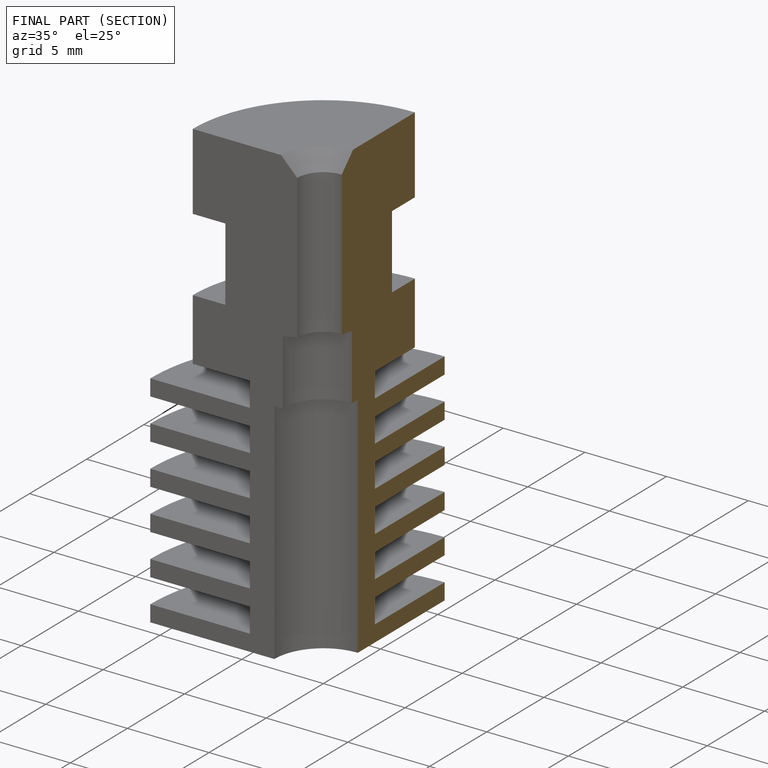
[diagram: finished part — half-section view (interior)]
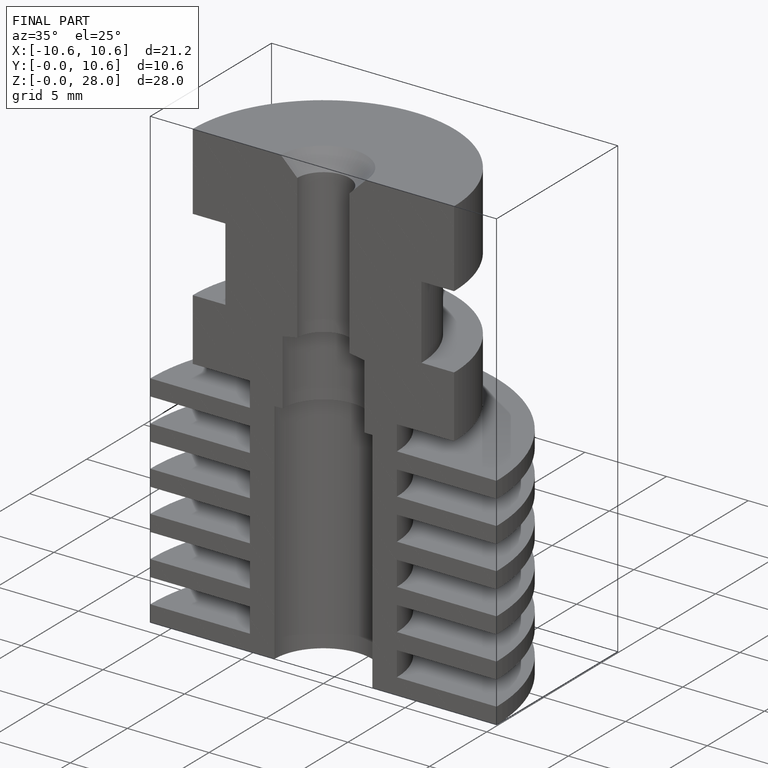
[diagram: finished part — iso view with bounding-box wireframe]
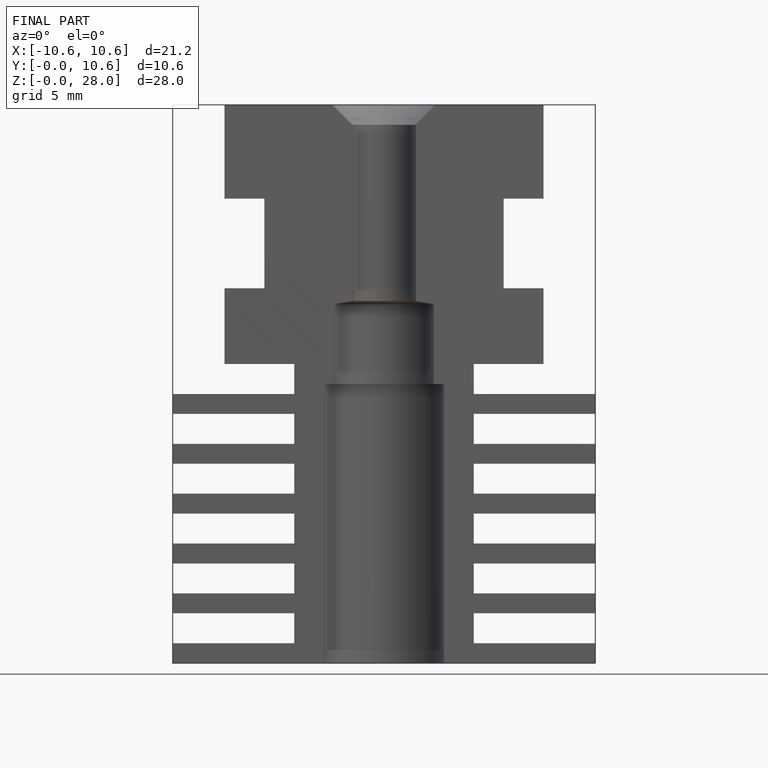
[diagram: finished part — front view with bounding-box wireframe]
